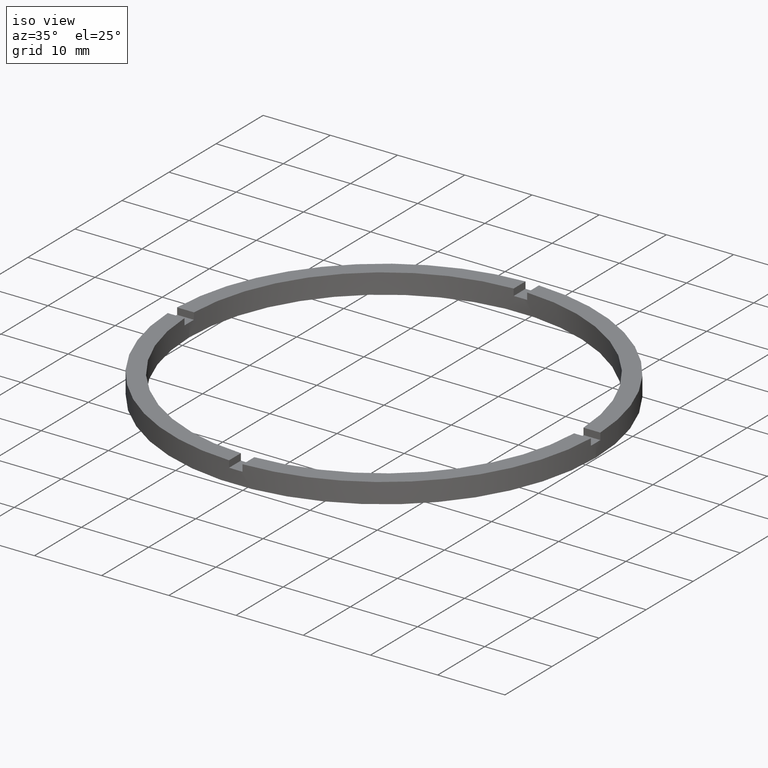
[diagram: clean part render]
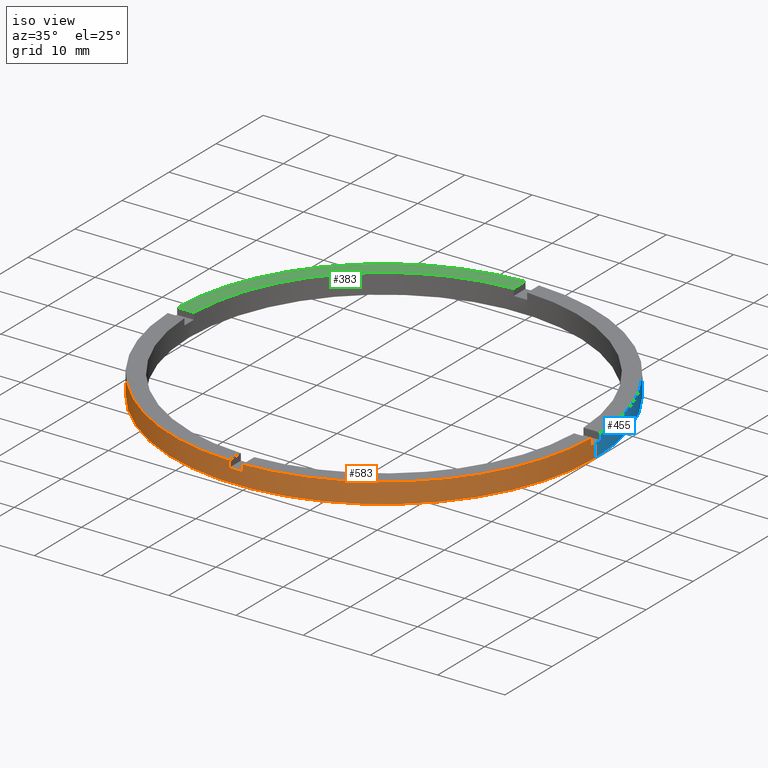
[diagram: same view with three faces highlighted in distinct colors, each labeled with its STEP entity id]
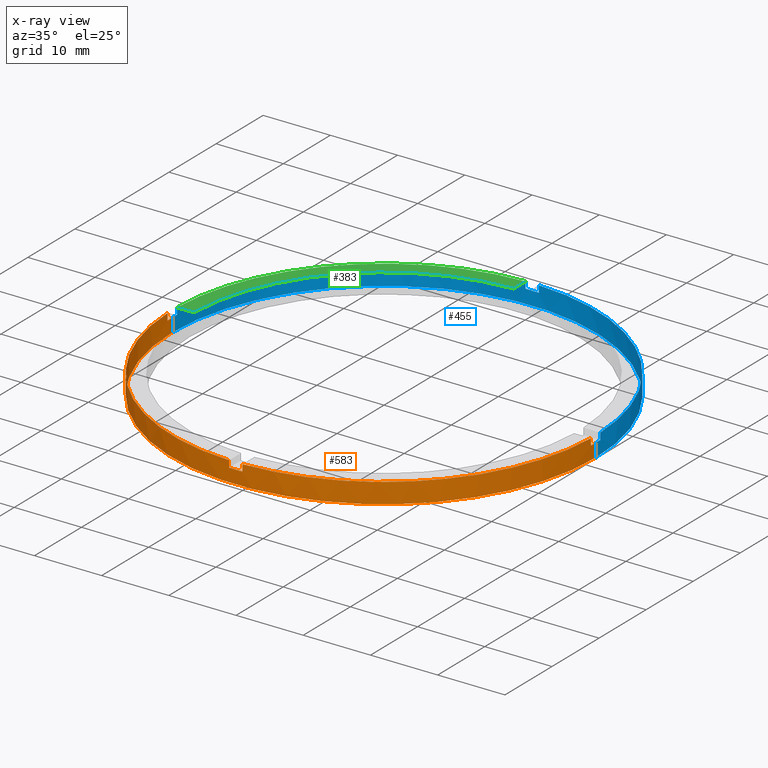
[diagram: x-ray of the same camera — body ghosted, the three highlighted faces saturated]
A machine part, iso view with three faces highlighted in distinct colors.
The next image is the same camera in x-ray (body ghosted, the three faces saturated) — at least one of them is partly hidden behind the body in this view.
Their STEP definitions:

[orange] entity #583 — the highlighted cylindrical surface (partial cylindrical patch) has radius 31.5 mm, axis along (-0, -0, -1).
#14 = EDGE_CURVE ( 'NONE', #264, #201, #422, .T. ) ;
#24 = VERTEX_POINT ( 'NONE', #733 ) ;
#49 = DIRECTION ( 'NONE',  ( 0.000000000000000000, 0.000000000000000000, 1.000000000000000000 ) ) ;
#58 = CARTESIAN_POINT ( 'NONE',  ( -31.50000000000000000, 0.000000000000000000, 2.000000000000000000 ) ) ;
#59 = DIRECTION ( 'NONE',  ( -1.000000000000000000, 0.000000000000000000, 0.000000000000000000 ) ) ;
#63 = DIRECTION ( 'NONE',  ( 0.000000000000000000, 0.000000000000000000, 1.000000000000000000 ) ) ;
#68 = DIRECTION ( 'NONE',  ( 0.000000000000000000, 0.000000000000000000, 1.000000000000000000 ) ) ;
#77 = VECTOR ( 'NONE', #363, 1000.000000000000000 ) ;
#90 = DIRECTION ( 'NONE',  ( -0.000000000000000000, -0.000000000000000000, -1.000000000000000000 ) ) ;
#91 = CARTESIAN_POINT ( 'NONE',  ( 0.000000000000000000, 0.000000000000000000, 2.000000000000000000 ) ) ;
#93 = VECTOR ( 'NONE', #90, 1000.000000000000000 ) ;
#97 = CIRCLE ( 'NONE', #263, 31.50000000000000000 ) ;
#98 = LINE ( 'NONE', #255, #77 ) ;
#109 = EDGE_CURVE ( 'NONE', #297, #447, #163, .T. ) ;
#117 = CIRCLE ( 'NONE', #333, 31.50000000000000000 ) ;
#119 = DIRECTION ( 'NONE',  ( -0.000000000000000000, -0.000000000000000000, -1.000000000000000000 ) ) ;
#124 = EDGE_CURVE ( 'NONE', #289, #732, #686, .T. ) ;
#143 = AXIS2_PLACEMENT_3D ( 'NONE', #91, #225, #344 ) ;
#145 = CARTESIAN_POINT ( 'NONE',  ( -31.50000000000000000, 0.000000000000000000, 3.000000000000000000 ) ) ;
#153 = CARTESIAN_POINT ( 'NONE',  ( -31.48412298286233124, -1.000000000000025757, 2.000000000000000000 ) ) ;
#163 = CIRCLE ( 'NONE', #655, 31.50000000000000000 ) ;
#169 = VECTOR ( 'NONE', #284, 1000.000000000000000 ) ;
#173 = ORIENTED_EDGE ( 'NONE', *, *, #409, .T. ) ;
#182 = DIRECTION ( 'NONE',  ( -0.000000000000000000, -0.000000000000000000, -1.000000000000000000 ) ) ;
#184 = EDGE_CURVE ( 'NONE', #776, #510, #117, .T. ) ;
#186 = CARTESIAN_POINT ( 'NONE',  ( 0.9999999999998386846, -31.48412298286233479, 3.000000000000000000 ) ) ;
#189 = DIRECTION ( 'NONE',  ( 1.000000000000000000, 0.000000000000000000, 0.000000000000000000 ) ) ;
#201 = VERTEX_POINT ( 'NONE', #726 ) ;
#208 = DIRECTION ( 'NONE',  ( 1.000000000000000000, 0.000000000000000000, 0.000000000000000000 ) ) ;
#213 = ORIENTED_EDGE ( 'NONE', *, *, #580, .F. ) ;
#216 = AXIS2_PLACEMENT_3D ( 'NONE', #357, #648, #59 ) ;
#219 = CARTESIAN_POINT ( 'NONE',  ( 31.50000000000000000, 3.857637417314162689E-15, 3.000000000000000000 ) ) ;
#225 = DIRECTION ( 'NONE',  ( 0.000000000000000000, 0.000000000000000000, 1.000000000000000000 ) ) ;
#228 = CIRCLE ( 'NONE', #600, 31.50000000000000000 ) ;
#229 = ORIENTED_EDGE ( 'NONE', *, *, #109, .F. ) ;
#255 = CARTESIAN_POINT ( 'NONE',  ( -1.000000000000161426, -31.48412298286232414, 3.000000000000000000 ) ) ;
#256 = ORIENTED_EDGE ( 'NONE', *, *, #14, .F. ) ;
#263 = AXIS2_PLACEMENT_3D ( 'NONE', #538, #49, #208 ) ;
#264 = VERTEX_POINT ( 'NONE', #531 ) ;
#273 = ORIENTED_EDGE ( 'NONE', *, *, #707, .T. ) ;
#277 = EDGE_CURVE ( 'NONE', #715, #201, #228, .T. ) ;
#278 = CARTESIAN_POINT ( 'NONE',  ( -1.000000000000161426, -31.48412298286232414, 3.000000000000000000 ) ) ;
#284 = DIRECTION ( 'NONE',  ( -0.000000000000000000, -0.000000000000000000, -1.000000000000000000 ) ) ;
#285 = EDGE_CURVE ( 'NONE', #289, #510, #486, .T. ) ;
#289 = VERTEX_POINT ( 'NONE', #505 ) ;
#297 = VERTEX_POINT ( 'NONE', #674 ) ;
#324 = AXIS2_PLACEMENT_3D ( 'NONE', #607, #63, #330 ) ;
#330 = DIRECTION ( 'NONE',  ( 1.000000000000000000, 0.000000000000000000, 0.000000000000000000 ) ) ;
#333 = AXIS2_PLACEMENT_3D ( 'NONE', #601, #68, #720 ) ;
#342 = CARTESIAN_POINT ( 'NONE',  ( -31.50000000000000000, 0.000000000000000000, 0.000000000000000000 ) ) ;
#344 = DIRECTION ( 'NONE',  ( 1.000000000000000000, 0.000000000000000000, 0.000000000000000000 ) ) ;
#347 = VECTOR ( 'NONE', #119, 1000.000000000000000 ) ;
#349 = VECTOR ( 'NONE', #400, 1000.000000000000000 ) ;
#356 = CIRCLE ( 'NONE', #143, 31.50000000000000000 ) ;
#357 = CARTESIAN_POINT ( 'NONE',  ( 0.000000000000000000, 0.000000000000000000, 3.000000000000000000 ) ) ;
#363 = DIRECTION ( 'NONE',  ( 0.000000000000000000, 0.000000000000000000, 1.000000000000000000 ) ) ;
#368 = LINE ( 'NONE', #405, #349 ) ;
#400 = DIRECTION ( 'NONE',  ( 0.000000000000000000, 0.000000000000000000, 1.000000000000000000 ) ) ;
#405 = CARTESIAN_POINT ( 'NONE',  ( 31.48412298286232414, -1.000000000000158540, 3.000000000000000000 ) ) ;
#409 = EDGE_CURVE ( 'NONE', #533, #447, #775, .T. ) ;
#422 = LINE ( 'NONE', #219, #169 ) ;
#441 = CARTESIAN_POINT ( 'NONE',  ( 0.000000000000000000, 0.000000000000000000, 2.000000000000000000 ) ) ;
#447 = VERTEX_POINT ( 'NONE', #659 ) ;
#468 = CARTESIAN_POINT ( 'NONE',  ( 0.9999999999998386846, -31.48412298286233479, 3.000000000000000000 ) ) ;
#473 = ORIENTED_EDGE ( 'NONE', *, *, #534, .F. ) ;
#479 = EDGE_CURVE ( 'NONE', #297, #732, #98, .T. ) ;
#486 = LINE ( 'NONE', #596, #735 ) ;
#492 = ORIENTED_EDGE ( 'NONE', *, *, #716, .T. ) ;
#495 = ORIENTED_EDGE ( 'NONE', *, *, #184, .F. ) ;
#501 = EDGE_LOOP ( 'NONE', ( #256, #213, #492, #473, #173, #229, #759, #718, #535, #495, #273, #761 ) ) ;
#505 = CARTESIAN_POINT ( 'NONE',  ( -31.48412298286233124, -1.000000000000025757, 3.000000000000000000 ) ) ;
#509 = VERTEX_POINT ( 'NONE', #599 ) ;
#510 = VERTEX_POINT ( 'NONE', #153 ) ;
#511 = CARTESIAN_POINT ( 'NONE',  ( 0.000000000000000000, 0.000000000000000000, 0.000000000000000000 ) ) ;
#516 = DIRECTION ( 'NONE',  ( 1.000000000000000000, 0.000000000000000000, 0.000000000000000000 ) ) ;
#531 = CARTESIAN_POINT ( 'NONE',  ( 31.50000000000000000, 3.857637417314162689E-15, 2.000000000000000000 ) ) ;
#533 = VERTEX_POINT ( 'NONE', #468 ) ;
#534 = EDGE_CURVE ( 'NONE', #533, #24, #97, .T. ) ;
#535 = ORIENTED_EDGE ( 'NONE', *, *, #285, .T. ) ;
#538 = CARTESIAN_POINT ( 'NONE',  ( 0.000000000000000000, 0.000000000000000000, 3.000000000000000000 ) ) ;
#558 = DIRECTION ( 'NONE',  ( 0.000000000000000000, 0.000000000000000000, 1.000000000000000000 ) ) ;
#563 = DIRECTION ( 'NONE',  ( -0.000000000000000000, 0.000000000000000000, 1.000000000000000000 ) ) ;
#580 = EDGE_CURVE ( 'NONE', #509, #264, #356, .T. ) ;
#583 = ADVANCED_FACE ( 'NONE', ( #623 ), #620, .T. ) ;
#596 = CARTESIAN_POINT ( 'NONE',  ( -31.48412298286233124, -1.000000000000025757, 3.000000000000000000 ) ) ;
#598 = LINE ( 'NONE', #145, #93 ) ;
#599 = CARTESIAN_POINT ( 'NONE',  ( 31.48412298286232414, -1.000000000000158540, 2.000000000000000000 ) ) ;
#600 = AXIS2_PLACEMENT_3D ( 'NONE', #511, #558, #189 ) ;
#601 = CARTESIAN_POINT ( 'NONE',  ( 0.000000000000000000, 0.000000000000000000, 2.000000000000000000 ) ) ;
#607 = CARTESIAN_POINT ( 'NONE',  ( 0.000000000000000000, 0.000000000000000000, 3.000000000000000000 ) ) ;
#620 = CYLINDRICAL_SURFACE ( 'NONE', #216, 31.50000000000000000 ) ;
#623 = FACE_OUTER_BOUND ( 'NONE', #501, .T. ) ;
#648 = DIRECTION ( 'NONE',  ( -0.000000000000000000, -0.000000000000000000, -1.000000000000000000 ) ) ;
#655 = AXIS2_PLACEMENT_3D ( 'NONE', #441, #563, #516 ) ;
#659 = CARTESIAN_POINT ( 'NONE',  ( 0.9999999999998386846, -31.48412298286233479, 2.000000000000000000 ) ) ;
#674 = CARTESIAN_POINT ( 'NONE',  ( -1.000000000000161426, -31.48412298286232414, 2.000000000000000000 ) ) ;
#686 = CIRCLE ( 'NONE', #324, 31.50000000000000000 ) ;
#707 = EDGE_CURVE ( 'NONE', #776, #715, #598, .T. ) ;
#715 = VERTEX_POINT ( 'NONE', #342 ) ;
#716 = EDGE_CURVE ( 'NONE', #509, #24, #368, .T. ) ;
#718 = ORIENTED_EDGE ( 'NONE', *, *, #124, .F. ) ;
#720 = DIRECTION ( 'NONE',  ( 1.000000000000000000, 0.000000000000000000, 0.000000000000000000 ) ) ;
#726 = CARTESIAN_POINT ( 'NONE',  ( 31.50000000000000000, 3.857637417314162689E-15, 0.000000000000000000 ) ) ;
#732 = VERTEX_POINT ( 'NONE', #278 ) ;
#733 = CARTESIAN_POINT ( 'NONE',  ( 31.48412298286232414, -1.000000000000158540, 3.000000000000000000 ) ) ;
#735 = VECTOR ( 'NONE', #182, 1000.000000000000000 ) ;
#759 = ORIENTED_EDGE ( 'NONE', *, *, #479, .T. ) ;
#761 = ORIENTED_EDGE ( 'NONE', *, *, #277, .T. ) ;
#775 = LINE ( 'NONE', #186, #347 ) ;
#776 = VERTEX_POINT ( 'NONE', #58 ) ;

[blue] entity #455 — the highlighted cylindrical surface (partial cylindrical patch) has radius 31.5 mm, axis along (-0, -0, -1).
#11 = CARTESIAN_POINT ( 'NONE',  ( 31.48412298286233479, 0.9999999999998414602, 2.000000000000000000 ) ) ;
#12 = AXIS2_PLACEMENT_3D ( 'NONE', #755, #42, #539 ) ;
#14 = EDGE_CURVE ( 'NONE', #264, #201, #422, .T. ) ;
#29 = VERTEX_POINT ( 'NONE', #71 ) ;
#30 = CARTESIAN_POINT ( 'NONE',  ( -31.48412298286233124, 0.9999999999999742428, 3.000000000000000000 ) ) ;
#36 = DIRECTION ( 'NONE',  ( 1.000000000000000000, 0.000000000000000000, 0.000000000000000000 ) ) ;
#42 = DIRECTION ( 'NONE',  ( 0.000000000000000000, 0.000000000000000000, 1.000000000000000000 ) ) ;
#51 = VERTEX_POINT ( 'NONE', #712 ) ;
#58 = CARTESIAN_POINT ( 'NONE',  ( -31.50000000000000000, 0.000000000000000000, 2.000000000000000000 ) ) ;
#64 = CARTESIAN_POINT ( 'NONE',  ( -1.000000000000024425, 31.48412298286233124, 2.000000000000000000 ) ) ;
#70 = DIRECTION ( 'NONE',  ( 1.000000000000000000, 0.000000000000000000, 0.000000000000000000 ) ) ;
#71 = CARTESIAN_POINT ( 'NONE',  ( 31.48412298286233479, 0.9999999999998414602, 3.000000000000000000 ) ) ;
#82 = FACE_OUTER_BOUND ( 'NONE', #246, .T. ) ;
#90 = DIRECTION ( 'NONE',  ( -0.000000000000000000, -0.000000000000000000, -1.000000000000000000 ) ) ;
#93 = VECTOR ( 'NONE', #90, 1000.000000000000000 ) ;
#94 = CIRCLE ( 'NONE', #663, 31.50000000000000000 ) ;
#95 = VECTOR ( 'NONE', #231, 1000.000000000000000 ) ;
#101 = CIRCLE ( 'NONE', #421, 31.50000000000000000 ) ;
#107 = AXIS2_PLACEMENT_3D ( 'NONE', #445, #525, #576 ) ;
#112 = DIRECTION ( 'NONE',  ( 0.000000000000000000, -0.000000000000000000, 1.000000000000000000 ) ) ;
#145 = CARTESIAN_POINT ( 'NONE',  ( -31.50000000000000000, 0.000000000000000000, 3.000000000000000000 ) ) ;
#154 = EDGE_CURVE ( 'NONE', #769, #778, #464, .T. ) ;
#158 = DIRECTION ( 'NONE',  ( 1.000000000000000000, 0.000000000000000000, 0.000000000000000000 ) ) ;
#169 = VECTOR ( 'NONE', #284, 1000.000000000000000 ) ;
#170 = DIRECTION ( 'NONE',  ( 0.000000000000000000, 0.000000000000000000, 1.000000000000000000 ) ) ;
#178 = AXIS2_PLACEMENT_3D ( 'NONE', #666, #668, #70 ) ;
#191 = ORIENTED_EDGE ( 'NONE', *, *, #154, .T. ) ;
#197 = ORIENTED_EDGE ( 'NONE', *, *, #615, .F. ) ;
#201 = VERTEX_POINT ( 'NONE', #726 ) ;
#207 = DIRECTION ( 'NONE',  ( 0.000000000000000000, 0.000000000000000000, 1.000000000000000000 ) ) ;
#219 = CARTESIAN_POINT ( 'NONE',  ( 31.50000000000000000, 3.857637417314162689E-15, 3.000000000000000000 ) ) ;
#222 = CARTESIAN_POINT ( 'NONE',  ( 0.9999999999999754641, 31.48412298286233124, 3.000000000000000000 ) ) ;
#231 = DIRECTION ( 'NONE',  ( 0.000000000000000000, 0.000000000000000000, 1.000000000000000000 ) ) ;
#246 = EDGE_LOOP ( 'NONE', ( #267, #764, #269, #507, #564, #709, #552, #191, #542, #504, #197, #669 ) ) ;
#248 = CARTESIAN_POINT ( 'NONE',  ( -1.000000000000024425, 31.48412298286233124, 3.000000000000000000 ) ) ;
#261 = VERTEX_POINT ( 'NONE', #452 ) ;
#264 = VERTEX_POINT ( 'NONE', #531 ) ;
#267 = ORIENTED_EDGE ( 'NONE', *, *, #346, .F. ) ;
#268 = EDGE_CURVE ( 'NONE', #527, #557, #483, .T. ) ;
#269 = ORIENTED_EDGE ( 'NONE', *, *, #765, .T. ) ;
#272 = CARTESIAN_POINT ( 'NONE',  ( -1.000000000000024425, 31.48412298286233124, 3.000000000000000000 ) ) ;
#284 = DIRECTION ( 'NONE',  ( -0.000000000000000000, -0.000000000000000000, -1.000000000000000000 ) ) ;
#288 = CARTESIAN_POINT ( 'NONE',  ( 31.48412298286233479, 0.9999999999998414602, 3.000000000000000000 ) ) ;
#298 = VERTEX_POINT ( 'NONE', #11 ) ;
#305 = DIRECTION ( 'NONE',  ( 1.000000000000000000, 0.000000000000000000, 0.000000000000000000 ) ) ;
#309 = CARTESIAN_POINT ( 'NONE',  ( 0.000000000000000000, 0.000000000000000000, 2.000000000000000000 ) ) ;
#335 = DIRECTION ( 'NONE',  ( -0.000000000000000000, -0.000000000000000000, -1.000000000000000000 ) ) ;
#342 = CARTESIAN_POINT ( 'NONE',  ( -31.50000000000000000, 0.000000000000000000, 0.000000000000000000 ) ) ;
#346 = EDGE_CURVE ( 'NONE', #264, #298, #567, .T. ) ;
#352 = VECTOR ( 'NONE', #335, 1000.000000000000000 ) ;
#354 = CIRCLE ( 'NONE', #107, 31.50000000000000000 ) ;
#373 = LINE ( 'NONE', #288, #352 ) ;
#379 = DIRECTION ( 'NONE',  ( -0.000000000000000000, -0.000000000000000000, -1.000000000000000000 ) ) ;
#412 = CARTESIAN_POINT ( 'NONE',  ( 0.000000000000000000, 0.000000000000000000, 3.000000000000000000 ) ) ;
#413 = CARTESIAN_POINT ( 'NONE',  ( 0.000000000000000000, 0.000000000000000000, 2.000000000000000000 ) ) ;
#420 = DIRECTION ( 'NONE',  ( 0.000000000000000000, 0.000000000000000000, 1.000000000000000000 ) ) ;
#421 = AXIS2_PLACEMENT_3D ( 'NONE', #745, #207, #36 ) ;
#422 = LINE ( 'NONE', #219, #169 ) ;
#445 = CARTESIAN_POINT ( 'NONE',  ( 0.000000000000000000, 0.000000000000000000, 3.000000000000000000 ) ) ;
#452 = CARTESIAN_POINT ( 'NONE',  ( 0.9999999999999754641, 31.48412298286233124, 3.000000000000000000 ) ) ;
#455 = ADVANCED_FACE ( 'NONE', ( #82 ), #618, .T. ) ;
#459 = VECTOR ( 'NONE', #379, 1000.000000000000000 ) ;
#464 = LINE ( 'NONE', #272, #459 ) ;
#472 = AXIS2_PLACEMENT_3D ( 'NONE', #413, #170, #305 ) ;
#477 = DIRECTION ( 'NONE',  ( -0.000000000000000000, -0.000000000000000000, -1.000000000000000000 ) ) ;
#483 = LINE ( 'NONE', #30, #731 ) ;
#504 = ORIENTED_EDGE ( 'NONE', *, *, #521, .T. ) ;
#507 = ORIENTED_EDGE ( 'NONE', *, *, #707, .F. ) ;
#521 = EDGE_CURVE ( 'NONE', #51, #261, #626, .T. ) ;
#525 = DIRECTION ( 'NONE',  ( 0.000000000000000000, 0.000000000000000000, 1.000000000000000000 ) ) ;
#527 = VERTEX_POINT ( 'NONE', #774 ) ;
#531 = CARTESIAN_POINT ( 'NONE',  ( 31.50000000000000000, 3.857637417314162689E-15, 2.000000000000000000 ) ) ;
#539 = DIRECTION ( 'NONE',  ( 1.000000000000000000, 0.000000000000000000, 0.000000000000000000 ) ) ;
#542 = ORIENTED_EDGE ( 'NONE', *, *, #585, .F. ) ;
#552 = ORIENTED_EDGE ( 'NONE', *, *, #757, .F. ) ;
#557 = VERTEX_POINT ( 'NONE', #640 ) ;
#564 = ORIENTED_EDGE ( 'NONE', *, *, #771, .F. ) ;
#567 = CIRCLE ( 'NONE', #178, 31.50000000000000000 ) ;
#576 = DIRECTION ( 'NONE',  ( 1.000000000000000000, 0.000000000000000000, 0.000000000000000000 ) ) ;
#585 = EDGE_CURVE ( 'NONE', #51, #778, #94, .T. ) ;
#593 = DIRECTION ( 'NONE',  ( -1.000000000000000000, 0.000000000000000000, 0.000000000000000000 ) ) ;
#598 = LINE ( 'NONE', #145, #93 ) ;
#604 = CIRCLE ( 'NONE', #472, 31.50000000000000000 ) ;
#615 = EDGE_CURVE ( 'NONE', #29, #261, #101, .T. ) ;
#618 = CYLINDRICAL_SURFACE ( 'NONE', #739, 31.50000000000000000 ) ;
#624 = CIRCLE ( 'NONE', #12, 31.50000000000000000 ) ;
#626 = LINE ( 'NONE', #222, #95 ) ;
#640 = CARTESIAN_POINT ( 'NONE',  ( -31.48412298286233124, 0.9999999999999742428, 3.000000000000000000 ) ) ;
#663 = AXIS2_PLACEMENT_3D ( 'NONE', #309, #112, #158 ) ;
#666 = CARTESIAN_POINT ( 'NONE',  ( 0.000000000000000000, 0.000000000000000000, 2.000000000000000000 ) ) ;
#668 = DIRECTION ( 'NONE',  ( 0.000000000000000000, 0.000000000000000000, 1.000000000000000000 ) ) ;
#669 = ORIENTED_EDGE ( 'NONE', *, *, #678, .T. ) ;
#678 = EDGE_CURVE ( 'NONE', #29, #298, #373, .T. ) ;
#707 = EDGE_CURVE ( 'NONE', #776, #715, #598, .T. ) ;
#709 = ORIENTED_EDGE ( 'NONE', *, *, #268, .T. ) ;
#712 = CARTESIAN_POINT ( 'NONE',  ( 0.9999999999999754641, 31.48412298286233124, 2.000000000000000000 ) ) ;
#715 = VERTEX_POINT ( 'NONE', #342 ) ;
#726 = CARTESIAN_POINT ( 'NONE',  ( 31.50000000000000000, 3.857637417314162689E-15, 0.000000000000000000 ) ) ;
#731 = VECTOR ( 'NONE', #420, 1000.000000000000000 ) ;
#739 = AXIS2_PLACEMENT_3D ( 'NONE', #412, #477, #593 ) ;
#745 = CARTESIAN_POINT ( 'NONE',  ( 0.000000000000000000, 0.000000000000000000, 3.000000000000000000 ) ) ;
#755 = CARTESIAN_POINT ( 'NONE',  ( 0.000000000000000000, 0.000000000000000000, 0.000000000000000000 ) ) ;
#757 = EDGE_CURVE ( 'NONE', #769, #557, #354, .T. ) ;
#764 = ORIENTED_EDGE ( 'NONE', *, *, #14, .T. ) ;
#765 = EDGE_CURVE ( 'NONE', #201, #715, #624, .T. ) ;
#769 = VERTEX_POINT ( 'NONE', #248 ) ;
#771 = EDGE_CURVE ( 'NONE', #527, #776, #604, .T. ) ;
#774 = CARTESIAN_POINT ( 'NONE',  ( -31.48412298286233124, 0.9999999999999742428, 2.000000000000000000 ) ) ;
#776 = VERTEX_POINT ( 'NONE', #58 ) ;
#778 = VERTEX_POINT ( 'NONE', #64 ) ;

[green] entity #383 — the highlighted planar face has unit normal (0, 0, 1).
#1 = EDGE_LOOP ( 'NONE', ( #5, #175, #748, #690 ) ) ;
#5 = ORIENTED_EDGE ( 'NONE', *, *, #590, .F. ) ;
#13 = DIRECTION ( 'NONE',  ( 0.000000000000000000, 0.000000000000000000, 1.000000000000000000 ) ) ;
#18 = CARTESIAN_POINT ( 'NONE',  ( 0.000000000000000000, 0.000000000000000000, 3.000000000000000000 ) ) ;
#81 = VECTOR ( 'NONE', #301, 1000.000000000000000 ) ;
#89 = LINE ( 'NONE', #239, #81 ) ;
#107 = AXIS2_PLACEMENT_3D ( 'NONE', #445, #525, #576 ) ;
#131 = CARTESIAN_POINT ( 'NONE',  ( 0.000000000000000000, 0.000000000000000000, 3.000000000000000000 ) ) ;
#140 = AXIS2_PLACEMENT_3D ( 'NONE', #18, #13, #502 ) ;
#175 = ORIENTED_EDGE ( 'NONE', *, *, #757, .T. ) ;
#239 = CARTESIAN_POINT ( 'NONE',  ( -1.000000000000024425, 21.50000000000000000, 3.000000000000000000 ) ) ;
#247 = FACE_OUTER_BOUND ( 'NONE', #1, .T. ) ;
#248 = CARTESIAN_POINT ( 'NONE',  ( -1.000000000000024425, 31.48412298286233124, 3.000000000000000000 ) ) ;
#294 = VERTEX_POINT ( 'NONE', #323 ) ;
#301 = DIRECTION ( 'NONE',  ( -0.000000000000000000, -1.000000000000000000, -0.000000000000000000 ) ) ;
#323 = CARTESIAN_POINT ( 'NONE',  ( -1.000000000000024425, 28.98275349237887610, 3.000000000000000000 ) ) ;
#354 = CIRCLE ( 'NONE', #107, 31.50000000000000000 ) ;
#366 = LINE ( 'NONE', #494, #611 ) ;
#383 = ADVANCED_FACE ( 'NONE', ( #247 ), #723, .T. ) ;
#384 = EDGE_CURVE ( 'NONE', #294, #751, #514, .T. ) ;
#423 = DIRECTION ( 'NONE',  ( 1.000000000000000000, 0.000000000000000000, 0.000000000000000000 ) ) ;
#445 = CARTESIAN_POINT ( 'NONE',  ( 0.000000000000000000, 0.000000000000000000, 3.000000000000000000 ) ) ;
#474 = EDGE_CURVE ( 'NONE', #751, #557, #366, .T. ) ;
#494 = CARTESIAN_POINT ( 'NONE',  ( -21.50000000000018119, 0.9999999999999761302, 3.000000000000000000 ) ) ;
#502 = DIRECTION ( 'NONE',  ( 1.000000000000000000, 0.000000000000000000, -0.000000000000000000 ) ) ;
#514 = CIRCLE ( 'NONE', #592, 29.00000000000000000 ) ;
#525 = DIRECTION ( 'NONE',  ( 0.000000000000000000, 0.000000000000000000, 1.000000000000000000 ) ) ;
#557 = VERTEX_POINT ( 'NONE', #640 ) ;
#576 = DIRECTION ( 'NONE',  ( 1.000000000000000000, 0.000000000000000000, 0.000000000000000000 ) ) ;
#590 = EDGE_CURVE ( 'NONE', #769, #294, #89, .T. ) ;
#592 = AXIS2_PLACEMENT_3D ( 'NONE', #131, #779, #423 ) ;
#611 = VECTOR ( 'NONE', #654, 1000.000000000000000 ) ;
#640 = CARTESIAN_POINT ( 'NONE',  ( -31.48412298286233124, 0.9999999999999742428, 3.000000000000000000 ) ) ;
#654 = DIRECTION ( 'NONE',  ( -1.000000000000000000, -1.951563910473908228E-16, 0.000000000000000000 ) ) ;
#687 = CARTESIAN_POINT ( 'NONE',  ( -28.98275349237887966, 0.9999999999999746869, 3.000000000000000000 ) ) ;
#690 = ORIENTED_EDGE ( 'NONE', *, *, #384, .F. ) ;
#723 = PLANE ( 'NONE',  #140 ) ;
#748 = ORIENTED_EDGE ( 'NONE', *, *, #474, .F. ) ;
#751 = VERTEX_POINT ( 'NONE', #687 ) ;
#757 = EDGE_CURVE ( 'NONE', #769, #557, #354, .T. ) ;
#769 = VERTEX_POINT ( 'NONE', #248 ) ;
#779 = DIRECTION ( 'NONE',  ( 0.000000000000000000, 0.000000000000000000, 1.000000000000000000 ) ) ;